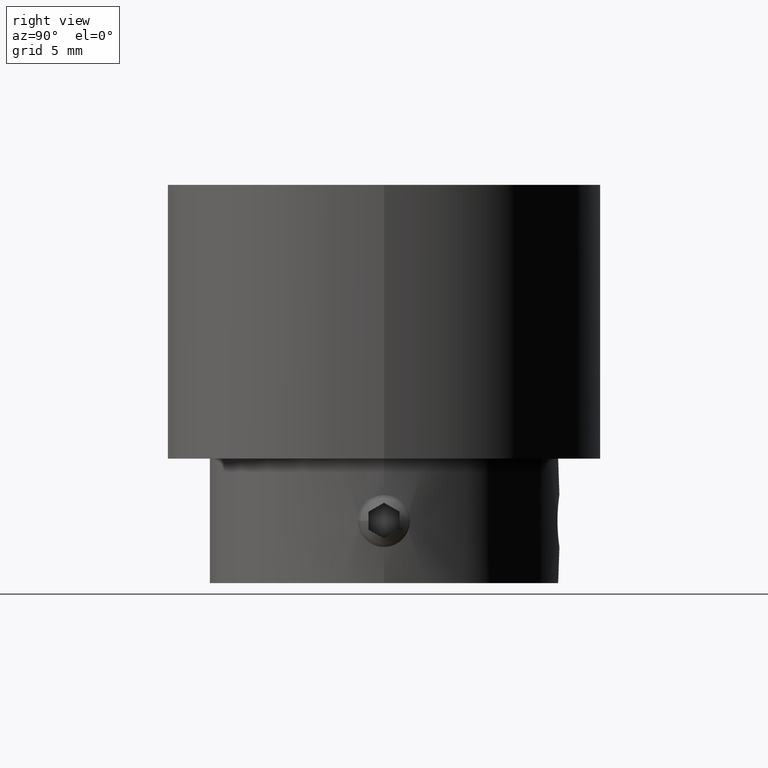
[diagram: clean part render]
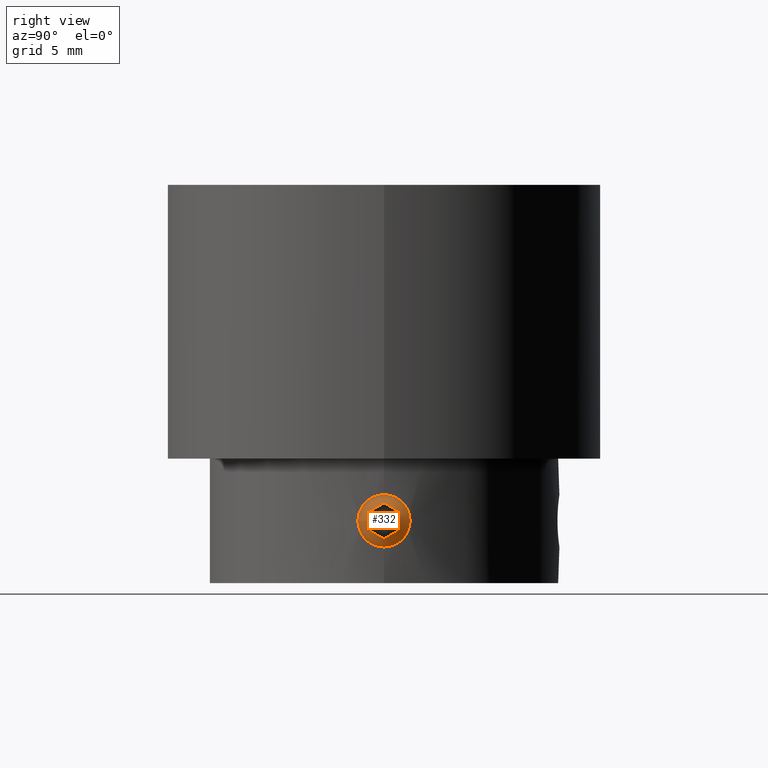
[diagram: same view with one face highlighted and labeled with its STEP entity id]
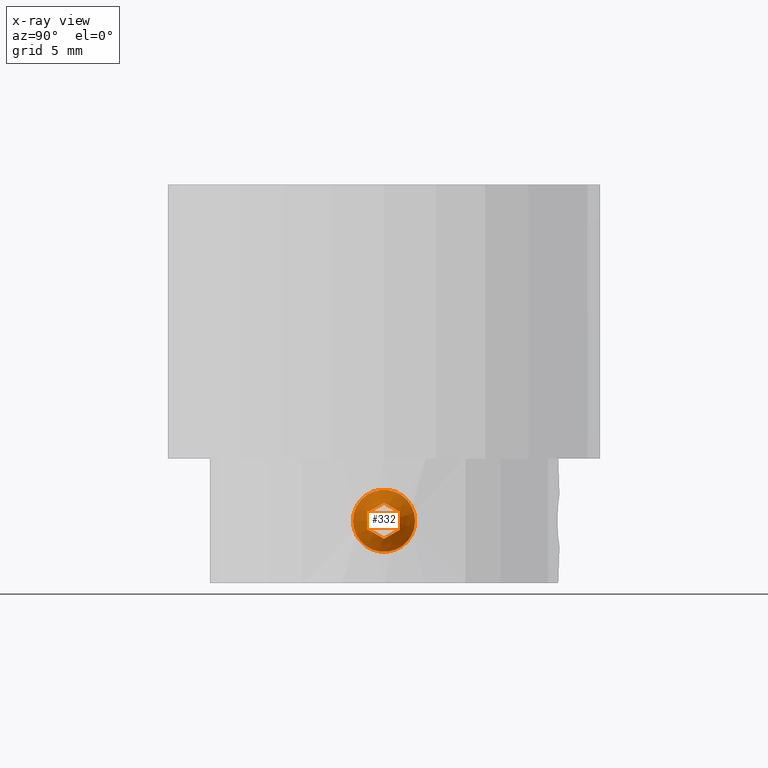
[diagram: x-ray of the same camera — body ghosted, the highlighted face saturated]
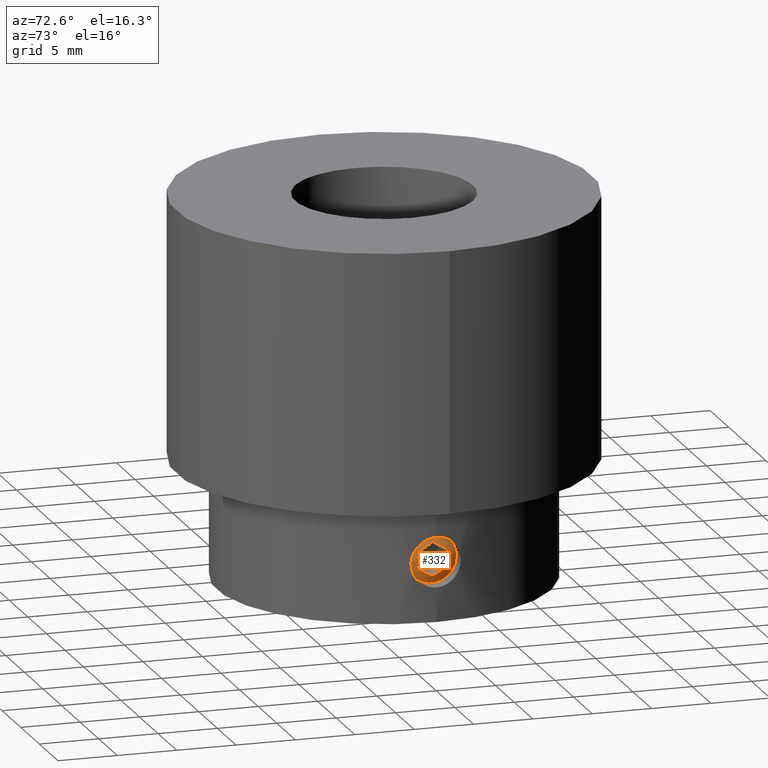
[diagram: same view with one face highlighted and labeled with its STEP entity id]
A machine part, right view. The second image highlights one B-rep face of the part: STEP entity #332.
The next image is the same camera in x-ray: the body ghosted, the highlighted face saturated — about 0% of this face is hidden behind the body in this view.
A second angle (auxiliary view) of the same face is appended — the face is thin or edge-on in the first view.
In plain terms, the highlighted conical surface has half-angle 63.435 deg.
Its self-contained STEP definition (entity closure, byte-faithful):
#332 = ADVANCED_FACE( '', ( #397, #398 ), #399, .T. );
#397 = FACE_OUTER_BOUND( '', #490, .T. );
#398 = FACE_BOUND( '', #491, .T. );
#399 = CONICAL_SURFACE( '', #492, 2.50000000000000, 1.10714871779409 );
#490 = EDGE_LOOP( '', ( #606 ) );
#491 = EDGE_LOOP( '', ( #607, #608, #609, #610, #611, #612 ) );
#492 = AXIS2_PLACEMENT_3D( '', #613, #614, #615 );
#606 = ORIENTED_EDGE( '', *, *, #772, .F. );
#607 = ORIENTED_EDGE( '', *, *, #773, .T. );
#608 = ORIENTED_EDGE( '', *, *, #774, .T. );
#609 = ORIENTED_EDGE( '', *, *, #775, .T. );
#610 = ORIENTED_EDGE( '', *, *, #776, .T. );
#611 = ORIENTED_EDGE( '', *, *, #777, .T. );
#612 = ORIENTED_EDGE( '', *, *, #778, .T. );
#613 = CARTESIAN_POINT( '', ( 12.5370595585078, 0.000000000000000, -27.0000000000000 ) );
#614 = DIRECTION( '', ( -1.00000000000000, -0.000000000000000, -0.000000000000000 ) );
#615 = DIRECTION( '', ( 0.000000000000000, -1.00000000000000, 0.000000000000000 ) );
#772 = EDGE_CURVE( '', #844, #844, #845, .T. );
#773 = EDGE_CURVE( '', #846, #847, #848, .T. );
#774 = EDGE_CURVE( '', #847, #849, #850, .T. );
#775 = EDGE_CURVE( '', #849, #851, #852, .T. );
#776 = EDGE_CURVE( '', #851, #853, #854, .F. );
#777 = EDGE_CURVE( '', #853, #855, #856, .T. );
#778 = EDGE_CURVE( '', #855, #846, #857, .T. );
#844 = VERTEX_POINT( '', #1168 );
#845 = CIRCLE( '', #1169, 2.50000000000000 );
#846 = VERTEX_POINT( '', #1170 );
#847 = VERTEX_POINT( '', #1171 );
#848 = B_SPLINE_CURVE_WITH_KNOTS( '', 3, ( #1172, #1173, #1174, #1175, #1176, #1177 ), .UNSPECIFIED., .F., .F., ( 4, 2, 4 ), ( 0.00129322886666107, 0.00202279493422372, 0.00275236100178638 ), .UNSPECIFIED. );
#849 = VERTEX_POINT( '', #1178 );
#850 = B_SPLINE_CURVE_WITH_KNOTS( '', 3, ( #1179, #1180, #1181, #1182, #1183, #1184 ), .UNSPECIFIED., .F., .F., ( 4, 2, 4 ), ( 2.34956166162920E-007, 0.000723983021226004, 0.00144773108628585 ), .UNSPECIFIED. );
#851 = VERTEX_POINT( '', #1185 );
#852 = B_SPLINE_CURVE_WITH_KNOTS( '', 3, ( #1186, #1187, #1188, #1189, #1190, #1191 ), .UNSPECIFIED., .F., .F., ( 4, 2, 4 ), ( 2.34956166163057E-007, 0.000723983021226004, 0.00144773108628584 ), .UNSPECIFIED. );
#853 = VERTEX_POINT( '', #1192 );
#854 = B_SPLINE_CURVE_WITH_KNOTS( '', 3, ( #1193, #1194, #1195, #1196, #1197, #1198 ), .UNSPECIFIED., .F., .F., ( 4, 2, 4 ), ( 0.00129322886666107, 0.00202279493422372, 0.00275236100178638 ), .UNSPECIFIED. );
#855 = VERTEX_POINT( '', #1199 );
#856 = B_SPLINE_CURVE_WITH_KNOTS( '', 3, ( #1200, #1201, #1202, #1203, #1204, #1205 ), .UNSPECIFIED., .F., .F., ( 4, 2, 4 ), ( 2.34956166162920E-007, 0.000723983021226003, 0.00144773108628584 ), .UNSPECIFIED. );
#857 = B_SPLINE_CURVE_WITH_KNOTS( '', 3, ( #1206, #1207, #1208, #1209, #1210, #1211 ), .UNSPECIFIED., .F., .F., ( 4, 2, 4 ), ( 2.34956166163063E-007, 0.000723983021226004, 0.00144773108628584 ), .UNSPECIFIED. );
#1168 = CARTESIAN_POINT( '', ( 12.5370595585078, -2.50000000000000, -27.0000000000000 ) );
#1169 = AXIS2_PLACEMENT_3D( '', #1354, #1355, #1356 );
#1170 = CARTESIAN_POINT( '', ( 13.0653717220208, -1.25000000000000, -27.7216878364870 ) );
#1171 = CARTESIAN_POINT( '', ( 13.0653717220208, -1.25000000000000, -26.2783121635130 ) );
#1172 = CARTESIAN_POINT( '', ( 13.0653717220208, -1.25000000000000, -27.7216878364870 ) );
#1173 = CARTESIAN_POINT( '', ( 13.1245560965667, -1.25000000000000, -27.4849503383034 ) );
#1174 = CARTESIAN_POINT( '', ( 13.1620271288397, -1.25000000000000, -27.2423718736572 ) );
#1175 = CARTESIAN_POINT( '', ( 13.1620919433572, -1.25000000000000, -26.7582975950863 ) );
#1176 = CARTESIAN_POINT( '', ( 13.1240655241797, -1.25000000000000, -26.5130873721472 ) );
#1177 = CARTESIAN_POINT( '', ( 13.0653717220211, -1.25000000000000, -26.2783121635129 ) );
#1178 = CARTESIAN_POINT( '', ( 13.0653717220208, 0.000000000000000, -25.5566243270259 ) );
#1179 = CARTESIAN_POINT( '', ( 13.0653717220208, -1.25000000000000, -26.2783121635130 ) );
#1180 = CARTESIAN_POINT( '', ( 13.1246533001018, -1.04464258962185, -26.1597490073511 ) );
#1181 = CARTESIAN_POINT( '', ( 13.1617176272745, -0.837672393265535, -26.0402547087705 ) );
#1182 = CARTESIAN_POINT( '', ( 13.1623965729507, -0.418400168062404, -25.7981877766857 ) );
#1183 = CARTESIAN_POINT( '', ( 13.1248798060887, -0.206142050132829, -25.6756404951614 ) );
#1184 = CARTESIAN_POINT( '', ( 13.0653717220209, 2.03803991576080E-014, -25.5566243270259 ) );
#1185 = CARTESIAN_POINT( '', ( 13.0653717220208, 1.25000000000000, -26.2783121635130 ) );
#1186 = CARTESIAN_POINT( '', ( 13.0653717220208, -4.44582405088572E-016, -25.5566243270259 ) );
#1187 = CARTESIAN_POINT( '', ( 13.1246533001018, 0.205357410378148, -25.6751874831878 ) );
#1188 = CARTESIAN_POINT( '', ( 13.1617176272745, 0.412327606734465, -25.7946817817684 ) );
#1189 = CARTESIAN_POINT( '', ( 13.1623965729507, 0.831599831937596, -26.0367487138532 ) );
#1190 = CARTESIAN_POINT( '', ( 13.1248798060887, 1.04385794986717, -26.1592959953775 ) );
#1191 = CARTESIAN_POINT( '', ( 13.0653717220209, 1.25000000000002, -26.2783121635130 ) );
#1192 = CARTESIAN_POINT( '', ( 13.0653717220208, 1.25000000000000, -27.7216878364870 ) );
#1193 = CARTESIAN_POINT( '', ( 13.0653717220208, 1.25000000000000, -27.7216878364870 ) );
#1194 = CARTESIAN_POINT( '', ( 13.1245560965667, 1.25000000000000, -27.4849503383034 ) );
#1195 = CARTESIAN_POINT( '', ( 13.1620271288397, 1.25000000000000, -27.2423718736572 ) );
#1196 = CARTESIAN_POINT( '', ( 13.1620919433572, 1.25000000000000, -26.7582975950863 ) );
#1197 = CARTESIAN_POINT( '', ( 13.1240655241797, 1.25000000000000, -26.5130873721472 ) );
#1198 = CARTESIAN_POINT( '', ( 13.0653717220211, 1.25000000000000, -26.2783121635129 ) );
#1199 = CARTESIAN_POINT( '', ( 13.0653717220208, -2.25229557290152E-016, -28.4433756729741 ) );
#1200 = CARTESIAN_POINT( '', ( 13.0653717220208, 1.25000000000000, -27.7216878364870 ) );
#1201 = CARTESIAN_POINT( '', ( 13.1246533001018, 1.04464258962185, -27.8402509926489 ) );
#1202 = CARTESIAN_POINT( '', ( 13.1617176272745, 0.837672393265535, -27.9597452912295 ) );
#1203 = CARTESIAN_POINT( '', ( 13.1623965729507, 0.418400168062404, -28.2018122233142 ) );
#1204 = CARTESIAN_POINT( '', ( 13.1248798060887, 0.206142050132829, -28.3243595048386 ) );
#1205 = CARTESIAN_POINT( '', ( 13.0653717220209, -2.04303408074764E-014, -28.4433756729741 ) );
#1206 = CARTESIAN_POINT( '', ( 13.0653717220208, 3.26461685326573E-016, -28.4433756729741 ) );
#1207 = CARTESIAN_POINT( '', ( 13.1246533001018, -0.205357410378149, -28.3248125168122 ) );
#1208 = CARTESIAN_POINT( '', ( 13.1617176272745, -0.412327606734465, -28.2053182182316 ) );
#1209 = CARTESIAN_POINT( '', ( 13.1623965729507, -0.831599831937596, -27.9632512861468 ) );
#1210 = CARTESIAN_POINT( '', ( 13.1248798060887, -1.04385794986717, -27.8407040046225 ) );
#1211 = CARTESIAN_POINT( '', ( 13.0653717220209, -1.25000000000002, -27.7216878364870 ) );
#1354 = CARTESIAN_POINT( '', ( 12.5370595585078, 0.000000000000000, -27.0000000000000 ) );
#1355 = DIRECTION( '', ( -1.00000000000000, -0.000000000000000, 0.000000000000000 ) );
#1356 = DIRECTION( '', ( 0.000000000000000, -1.00000000000000, 0.000000000000000 ) );